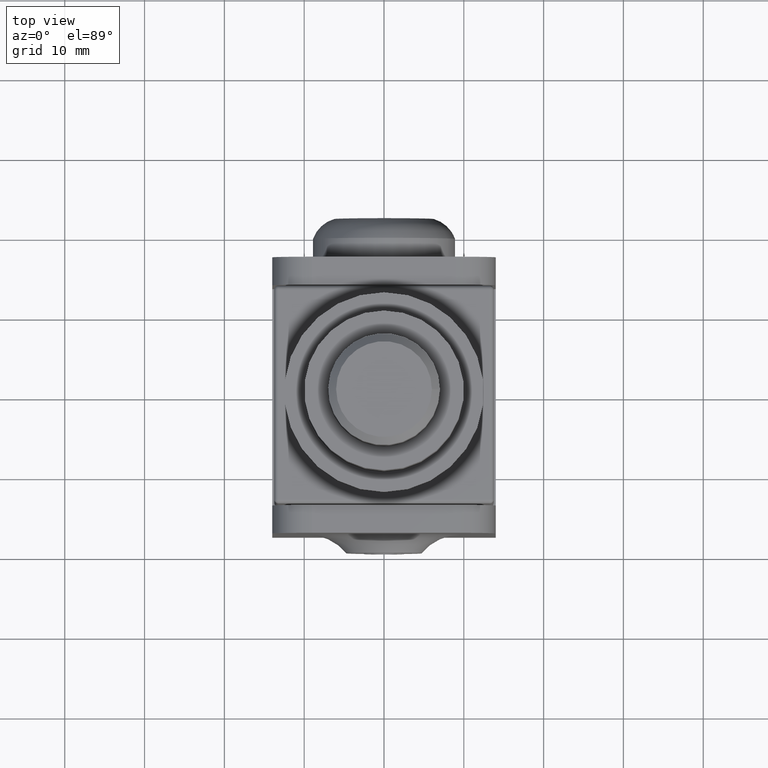
[diagram: clean part render]
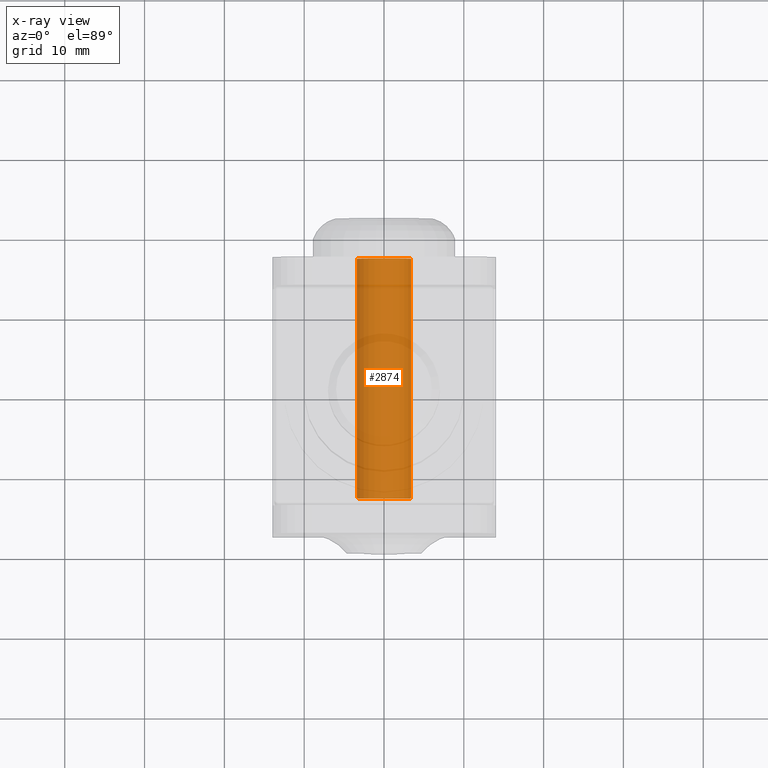
[diagram: x-ray — body ghosted, one internal face saturated and labeled with its STEP entity id]
A machine part, top view, then the same camera in x-ray: the body is ghosted and one INTERNAL B-rep face — a face not visible from any outside direction — is saturated and labeled: STEP entity #2874.
In plain terms, the highlighted cylindrical surface (bore or boss wall) has radius 3.4 mm, axis along (-0, -1, -0).
Its self-contained STEP definition (entity closure, byte-faithful):
#1170 = CARTESIAN_POINT ( 'NONE',  ( 3.903127820947815962E-15, 16.00000000000000711, 1.925929944387235853E-31 ) ) ;
#1205 = CIRCLE ( 'NONE', #14441, 3.400000000000004796 ) ;
#1841 = CYLINDRICAL_SURFACE ( 'NONE', #3296, 3.400000000000000799 ) ;
#2278 = ORIENTED_EDGE ( 'NONE', *, *, #9110, .F. ) ;
#2389 = FACE_OUTER_BOUND ( 'NONE', #8835, .T. ) ;
#2874 = ADVANCED_FACE ( 'NONE', ( #2389, #9116 ), #1841, .T. ) ;
#3296 = AXIS2_PLACEMENT_3D ( 'NONE', #6736, #7975, #5595 ) ;
#5028 = EDGE_CURVE ( 'NONE', #5748, #5748, #8893, .T. ) ;
#5284 = DIRECTION ( 'NONE',  ( 3.274080905458300950E-32, -1.000000000000000000, -1.232595164407830946E-32 ) ) ;
#5489 = AXIS2_PLACEMENT_3D ( 'NONE', #1170, #9323, #14998 ) ;
#5595 = DIRECTION ( 'NONE',  ( 0.000000000000000000, 0.000000000000000000, -1.000000000000000000 ) ) ;
#5748 = VERTEX_POINT ( 'NONE', #7343 ) ;
#5760 = EDGE_LOOP ( 'NONE', ( #2278 ) ) ;
#6319 = CARTESIAN_POINT ( 'NONE',  ( 3.903127820947815962E-15, -13.99999999999999822, -3.400000000000004796 ) ) ;
#6456 = DIRECTION ( 'NONE',  ( 0.000000000000000000, 0.000000000000000000, -1.000000000000000000 ) ) ;
#6736 = CARTESIAN_POINT ( 'NONE',  ( 3.903127820947815962E-15, -20.99999999999999645, -1.925929944387235853E-31 ) ) ;
#7343 = CARTESIAN_POINT ( 'NONE',  ( 3.903127820947815962E-15, 16.00000000000000711, -3.399999999999996803 ) ) ;
#7975 = DIRECTION ( 'NONE',  ( 3.274080905458300950E-32, -1.000000000000000000, -1.232595164407830946E-32 ) ) ;
#8835 = EDGE_LOOP ( 'NONE', ( #13344 ) ) ;
#8893 = CIRCLE ( 'NONE', #5489, 3.399999999999996803 ) ;
#9110 = EDGE_CURVE ( 'NONE', #12258, #12258, #1205, .T. ) ;
#9116 = FACE_OUTER_BOUND ( 'NONE', #5760, .T. ) ;
#9323 = DIRECTION ( 'NONE',  ( 3.274080905458300950E-32, -1.000000000000000000, -1.232595164407830946E-32 ) ) ;
#12258 = VERTEX_POINT ( 'NONE', #6319 ) ;
#13344 = ORIENTED_EDGE ( 'NONE', *, *, #5028, .T. ) ;
#14441 = AXIS2_PLACEMENT_3D ( 'NONE', #14523, #5284, #6456 ) ;
#14523 = CARTESIAN_POINT ( 'NONE',  ( 3.903127820947815962E-15, -13.99999999999999822, -1.925929944387235853E-31 ) ) ;
#14998 = DIRECTION ( 'NONE',  ( 0.000000000000000000, 0.000000000000000000, -1.000000000000000000 ) ) ;